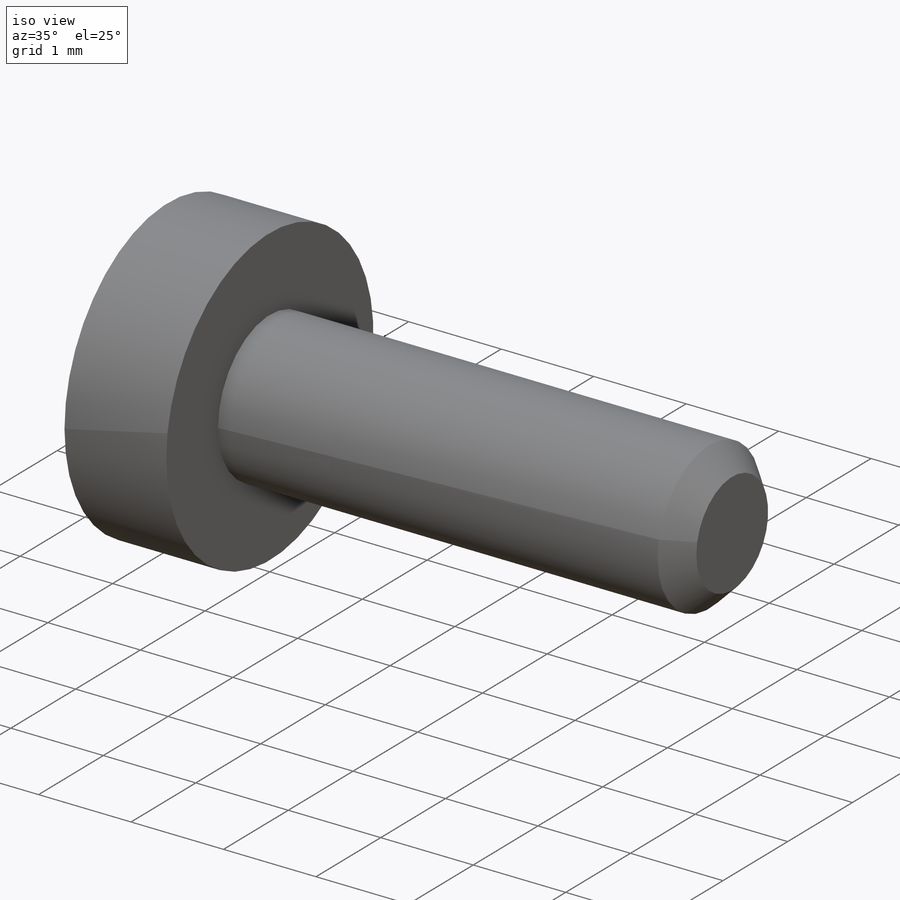
[diagram: iso view]
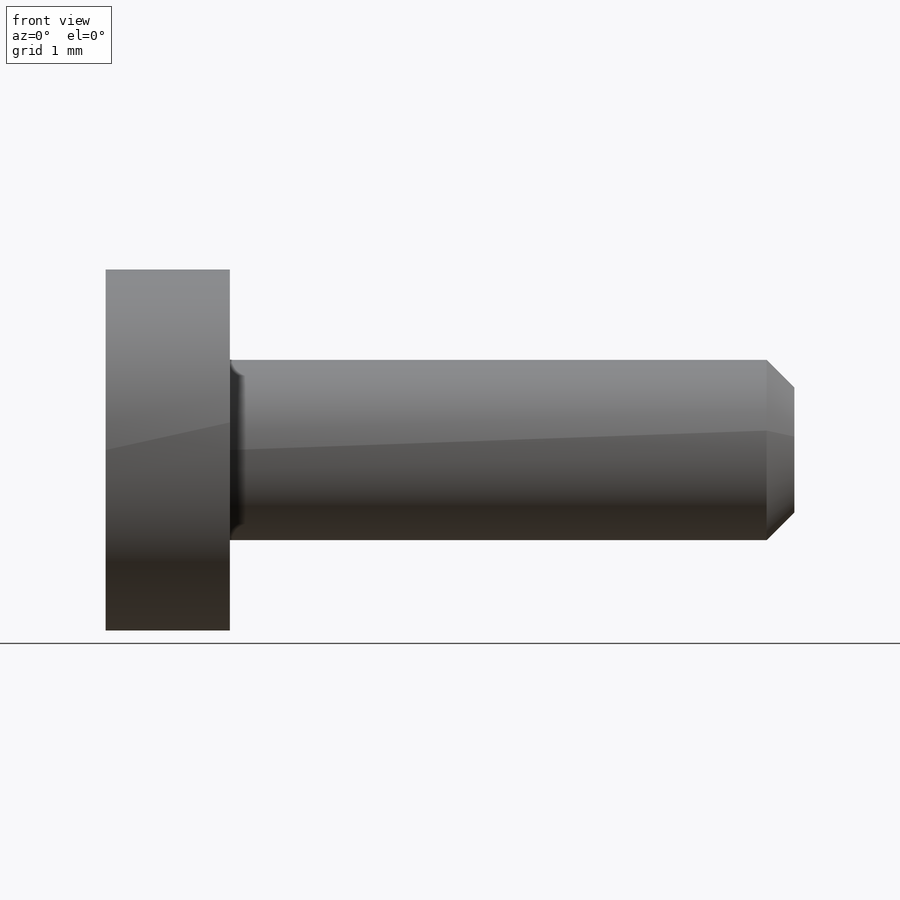
[diagram: front view]
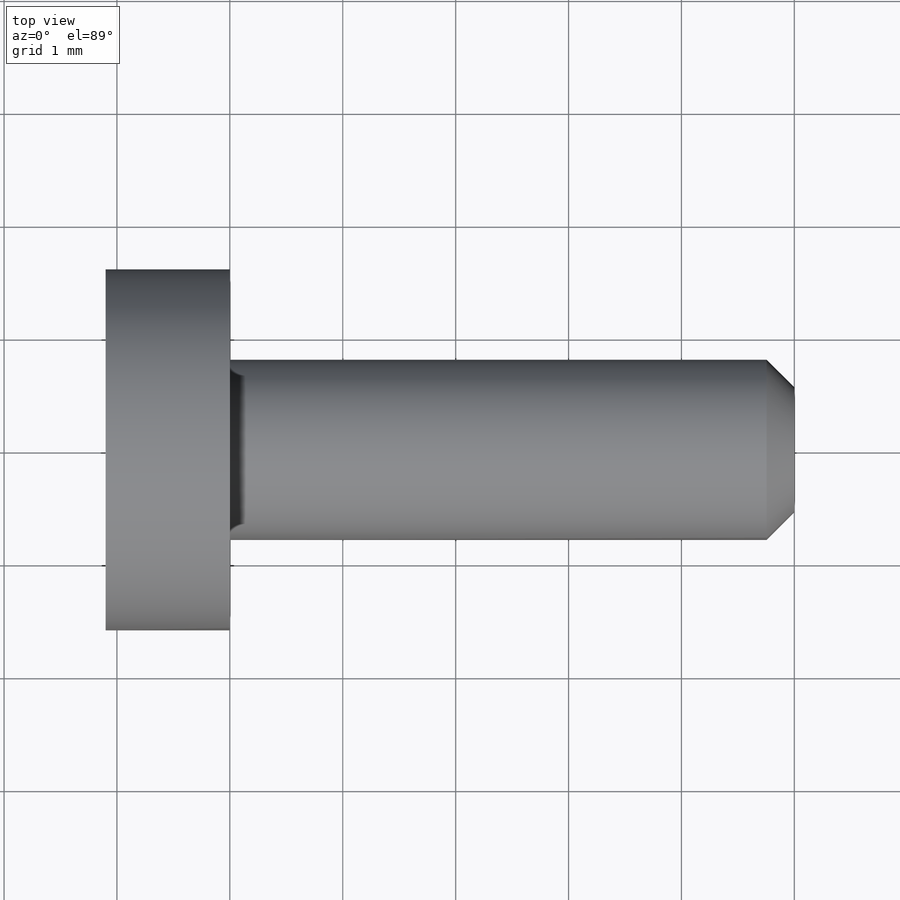
[diagram: top view]
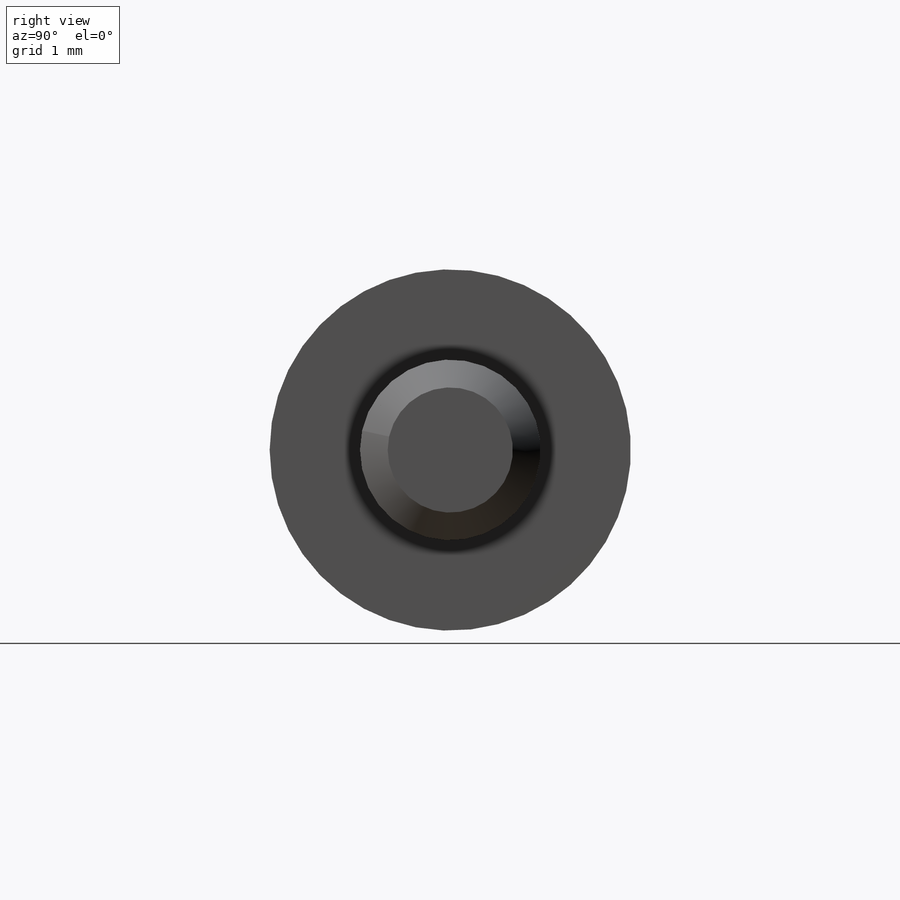
[diagram: right view]
SOLIDWORKS PART (.sldprt)
format: sldprt  version: not decoded by parser v0  size: 176,128 bytes
history: native  units: mm
features: plane x7, sketch x4, revolve x2, material x1, thread x1, cut_revolve x1, cut_extrude x1 + 2 further entries (+7 scaffold rows collapsed)
feature tree (26):
  scaffold x7  (default folders/planes/origin — collapsed)
  material  "AISI 304"
  "ｻｰﾌｪｽ ﾎﾞﾃﾞｨ"
  "ｿﾘｯﾄﾞ ﾎﾞﾃﾞｨ"
  plane  "正面"
  plane  "平面"
  plane  "右側面"
  plane  "Plane1"
  sketch  "Sketch1"  dims[D1=0.8mm]
  revolve  "Revolve1"  [1 undecoded]
  thread  "Cosmetic Thread1"  Diameter=3.8mm  [1 undecoded]
  plane  "Plane2"
  sketch  "Sketch2"
  revolve  "Revolve2"  Angle=360deg
  plane  "Plane3"
  sketch  "Sketch3"
  cut_revolve  "Cut-Revolve1"  Angle=360deg
  plane  "Plane4"
  sketch  "Sketch4"
  cut_extrude  "Cut-Extrude1"  Depth=1.2mm
decode coverage: 5 of 9 modeling features carry decoded parameters; 2 rows unclassified (native names shown)
note: 2 parameter values undecoded
note: suppression state not decoded; provenance and decode notes live in map.json
